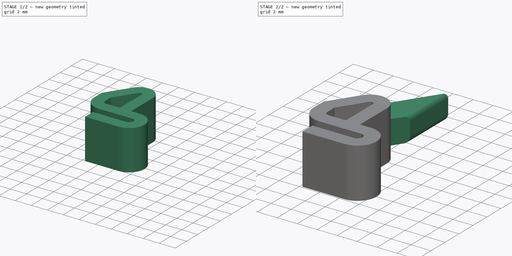
[diagram: build sequence overview — one tinted view per stage of 2, left to right]
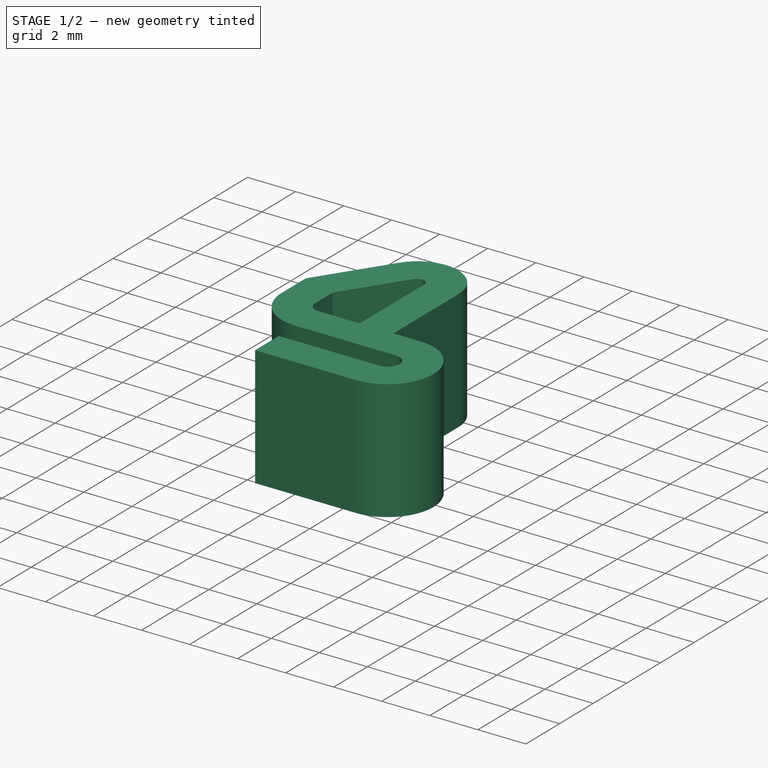
[diagram: stage 1 of 2 — iso view after this stage's code; geometry added in this stage tinted green]
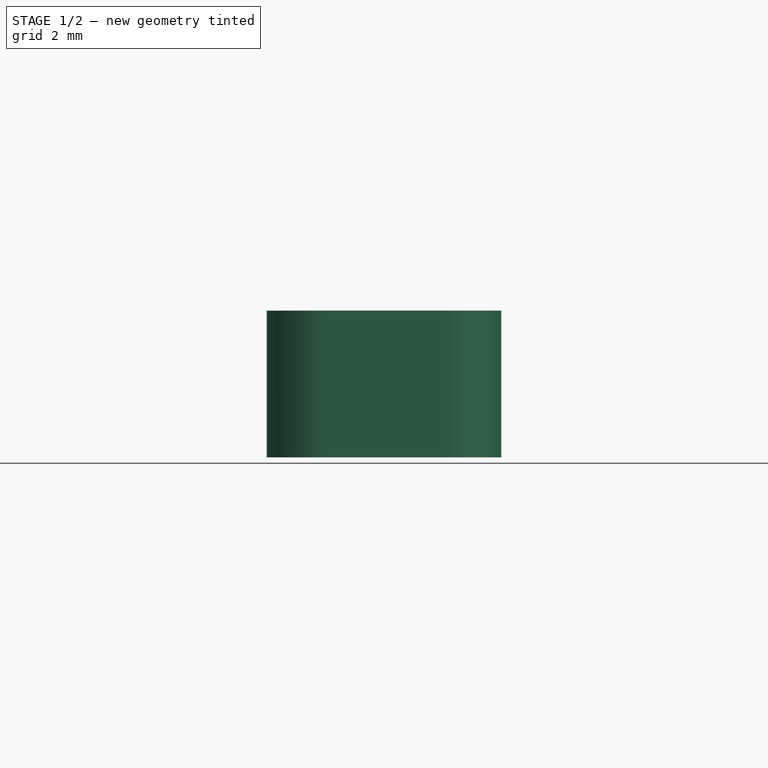
[diagram: stage 1 of 2 — front view after this stage's code; geometry added in this stage tinted green]
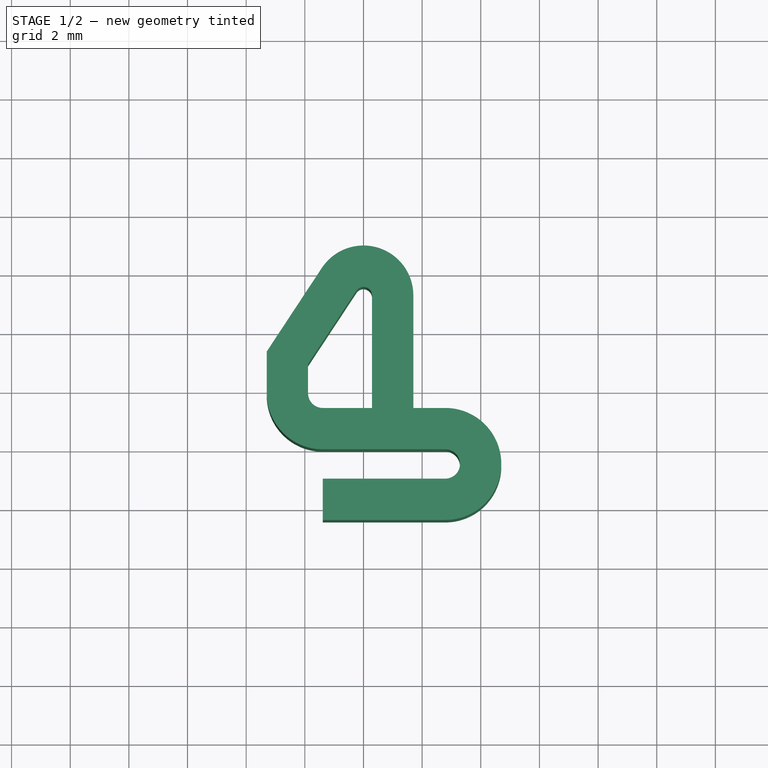
[diagram: stage 1 of 2 — top view after this stage's code; geometry added in this stage tinted green]
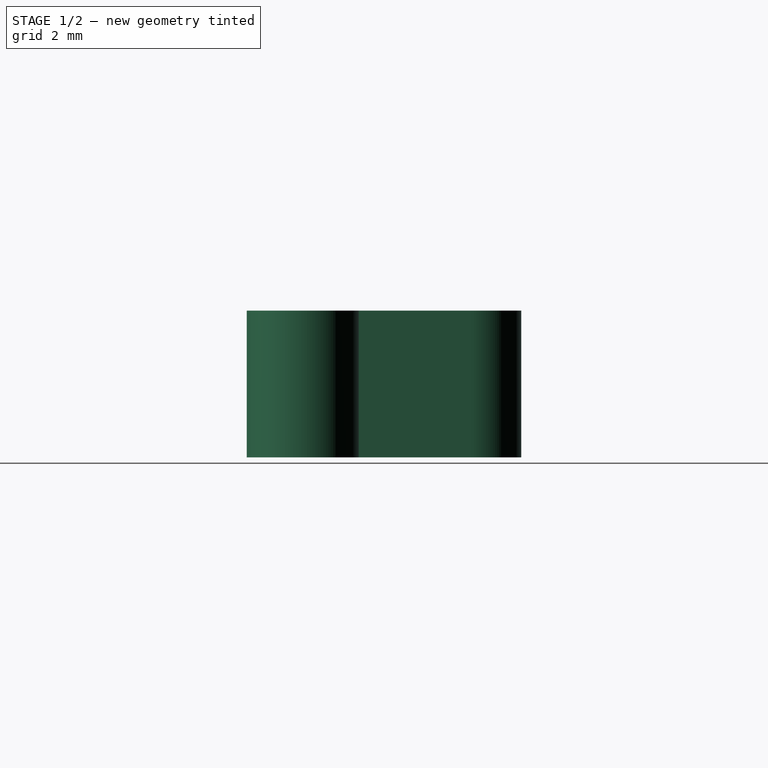
[diagram: stage 1 of 2 — right view after this stage's code; geometry added in this stage tinted green]
FCSTD DOCUMENT  (FreeCAD 0.20R29410 (Git))
Label: DevKitty-Button-Cut
License: All rights reserved
LicenseURL: http://en.wikipedia.org/wiki/All_rights_reserved
objects: Sketcher::SketchObject×2, PartDesign::Pad×2, PartDesign::Body×1
note: 7 computed .brp shape members not serialized (recipe doc carries the construction recipe); baked Part::Feature solids carry a one-line shape summary decoded from their .brp

FEATURE [Sketcher::SketchObject] Sketch
  FullyConstrained = true
  MapMode = 5
  Support = -> [XY_Plane]
  sketch-geometry (25):
    g0: ArcOfCircle CenterX=2.79 CenterY=-0.5 CenterZ=0 NormalX=0 NormalY=0 NormalZ=1 AngleXU=0 Radius=1.91 StartAngle=4.71239 EndAngle=7.85398
    g1: ArcOfCircle CenterX=2.79 CenterY=-0.5 CenterZ=0 NormalX=0 NormalY=0 NormalZ=1 AngleXU=0 Radius=0.5 StartAngle=4.71239 EndAngle=7.85398
    g2: LineSegment StartX=-1.39 StartY=-1 StartZ=0 EndX=2.79 EndY=-1 EndZ=0
    g3: LineSegment StartX=-1.39 StartY=-2.41 StartZ=0 EndX=2.79 EndY=-2.41 EndZ=0
    g4: LineSegment StartX=2.79 StartY=0 StartZ=0 EndX=-1.39 EndY=0 EndZ=0
    g5: ArcOfCircle CenterX=-1.39 CenterY=1.91 CenterZ=0 NormalX=0 NormalY=0 NormalZ=1 AngleXU=0 Radius=1.91 StartAngle=3.14159 EndAngle=4.71239
    g6: LineSegment StartX=-3.3 StartY=1.91 StartZ=0 EndX=-3.3 EndY=3.33295 EndZ=0
    g7: LineSegment StartX=-1.89 StartY=2.91 StartZ=0 EndX=-1.89 EndY=1.91 EndZ=0
    g8: ArcOfCircle CenterX=-1.39 CenterY=1.91 CenterZ=0 NormalX=0 NormalY=0 NormalZ=1 AngleXU=0 Radius=0.5 StartAngle=3.14159 EndAngle=4.71239
    g9: LineSegment StartX=-1.39 StartY=1.41 StartZ=0 EndX=0.29 EndY=1.41 EndZ=0
    g10: LineSegment StartX=0.29 StartY=1.41 StartZ=0 EndX=0.29 EndY=5.25 EndZ=0
    g11: LineSegment StartX=1.7 StartY=5.25 StartZ=0 EndX=1.7 EndY=1.41 EndZ=0
    g12: LineSegment StartX=-3.3 StartY=3.33295 StartZ=0 EndX=-1.41932 EndY=6.18569 EndZ=0
    g13: LineSegment StartX=-0.24212 StartY=5.40962 StartZ=0 EndX=-1.89 EndY=2.91 EndZ=0
    g14: LineSegment StartX=2.79 StartY=1.41 StartZ=0 EndX=2.79 EndY=0 EndZ=0
    g15: LineSegment StartX=-3.3 StartY=1.91 StartZ=0 EndX=-1.89 EndY=1.91 EndZ=0
    g16: LineSegment StartX=0.29 StartY=1.41 StartZ=0 EndX=1.7 EndY=1.41 EndZ=0
    g17: LineSegment StartX=2.79 StartY=1.41 StartZ=0 EndX=1.7 EndY=1.41 EndZ=0
    g18: ArcOfCircle CenterX=0 CenterY=5.25 CenterZ=0 NormalX=0 NormalY=0 NormalZ=1 AngleXU=0 Radius=1.7 StartAngle=6.49776e-07 EndAngle=2.55874
    g19: ArcOfCircle CenterX=0 CenterY=5.25 CenterZ=0 NormalX=0 NormalY=0 NormalZ=1 AngleXU=0 Radius=0.29 StartAngle=3.80903e-06 EndAngle=2.55874
    g20: LineSegment StartX=-0.24212 StartY=5.40962 StartZ=0 EndX=-1.41932 EndY=6.18569 EndZ=0
    g21: LineSegment StartX=-1.39 StartY=-1 StartZ=0 EndX=-1.39 EndY=-2.41 EndZ=0
    g22: GeomPoint X=4.7 Y=-0.5 Z=0
    g23: LineSegment StartX=-0.24212 StartY=5.40962 StartZ=0 EndX=0 EndY=5.25 EndZ=0
    g24: GeomPoint X=0 Y=6.95 Z=0
  constraints (71):
    c: Horizontal(g2)
    c: Horizontal(g3)
    c: Coincident(g2,g21)
    c: Coincident(g3,g21)
    c: Coincident(g0,g3)
    c: Coincident(g1,g2)
    c: Coincident(g1,g4)
    c: Coincident(g1,g14)
    c: Coincident(g0,g14)
    c: Coincident(g0,g17)
    c: Horizontal(g0,g22)
    c: Vertical(g1,g0)
    c: Vertical(g1,g0)
    c: Coincident(g0,g1)
    c: Horizontal(g4)
    c: Vertical(g21)
    c: Coincident(g7,g13)
    c: Coincident(g6,g12)
    c: Horizontal(g5,g7)
    c: Vertical(g5,g8)
    c: Equal(g16,g15)
    c: Equal(g15,g20)
    c: Equal(g20,g14)
    c: Coincident(g11,g16)
    c: Coincident(g11,g17)
    c: Coincident(g9,g10)
    c: Coincident(g9,g16)
    c: Coincident(g8,g9)
    c: Coincident(g7,g8)
    c: Coincident(g7,g15)
    c: Coincident(g5,g8)
    c: Horizontal(g9)
    c: Coincident(g4,g5)
    c: Horizontal(g16)
    c: Horizontal(g15)
    c: Vertical(g7)
    c: Vertical(g6)
    c: Vertical(g10)
    c: Vertical(g11)
    c: Coincident(g5,g6)
    c: Coincident(g5,g15)
    c: Coincident(g11,g18)
    c: Coincident(g10,g19)
    c: Coincident(g13,g19)
    c: Coincident(g13,g20)
    c: Coincident(g12,g18)
    c: Coincident(g12,g20)
    c: Coincident(g18,g19)
    c: Horizontal(g11,g10)
    c: Vertical(g14)
    c: PointOnObject(g18,g-2)
    c: Parallel(g23,g20)
    c: Vertical(g4,g8)
    c: PointOnObject(g24,g18)
    c: PointOnObject(g24,g-2)
    c: DistanceX(g5,g22) = 8
    c: PointOnObject(g22,g0)
    c: Vertical(g0,g1)
    c: DistanceX(g6,g11) = 5
    c: Coincident(g13,g23)
    c: Coincident(g18,g23)
    c: DistanceY(g11,g24) = 5.54
    c: Vertical(g2,g4)
    c: Parallel(g12,g13)
    c: DistanceY(g7,g7) = 1
    c: Angle(g13,g23) = 1.5708
    c: DistanceX(g16,g16) = 1.41
    c: PointOnObject(g-1,g4)
    c: Radius(g19) = 0.29
    c: Radius(g8) = 0.5
    c: DistanceY(g2,g1) = 1
FEATURE [PartDesign::Pad] Pad
  Direction = (0,0,1)
  Length = 5
  Length2 = 10
  Profile = -> Sketch
  ReferenceAxis = -> Sketch [N_Axis]
  Type = 0
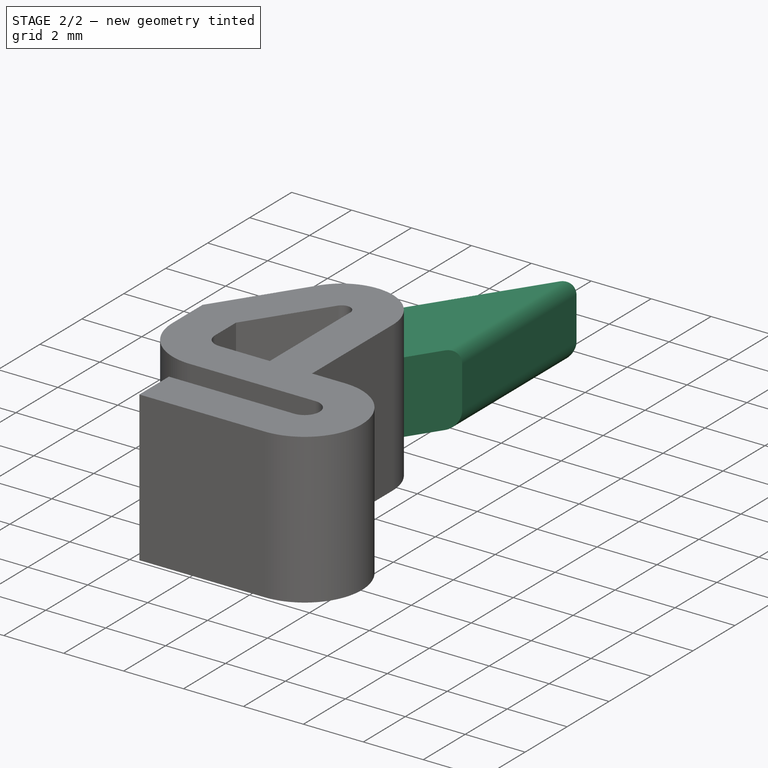
[diagram: stage 2 of 2 — iso view after this stage's code; geometry added in this stage tinted green]
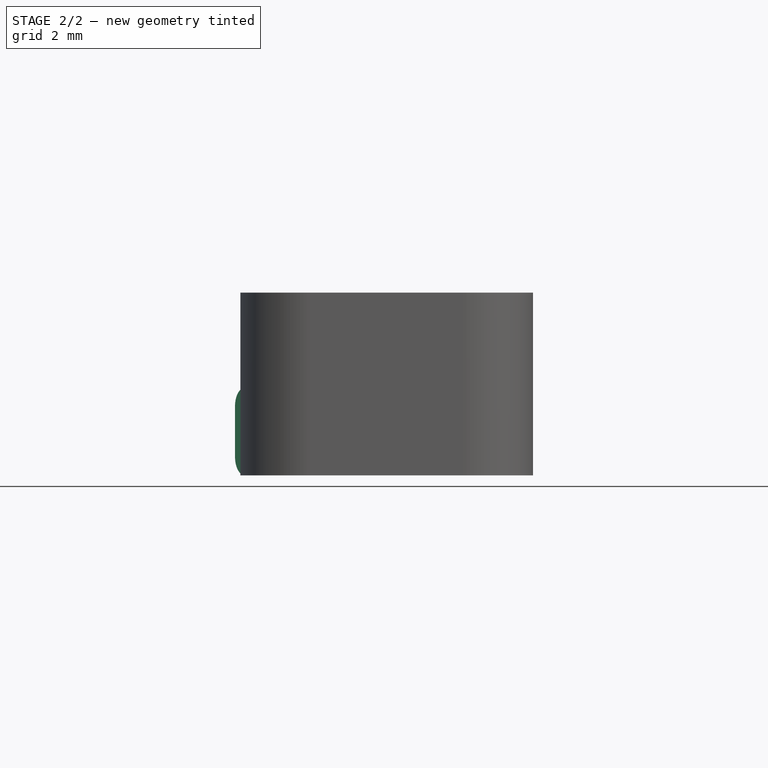
[diagram: stage 2 of 2 — front view after this stage's code; geometry added in this stage tinted green]
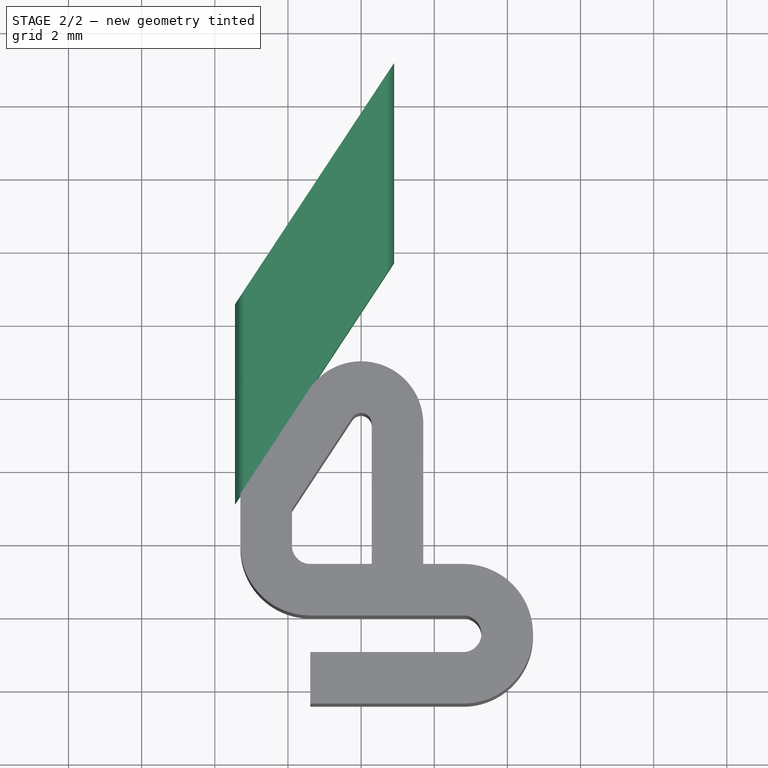
[diagram: stage 2 of 2 — top view after this stage's code; geometry added in this stage tinted green]
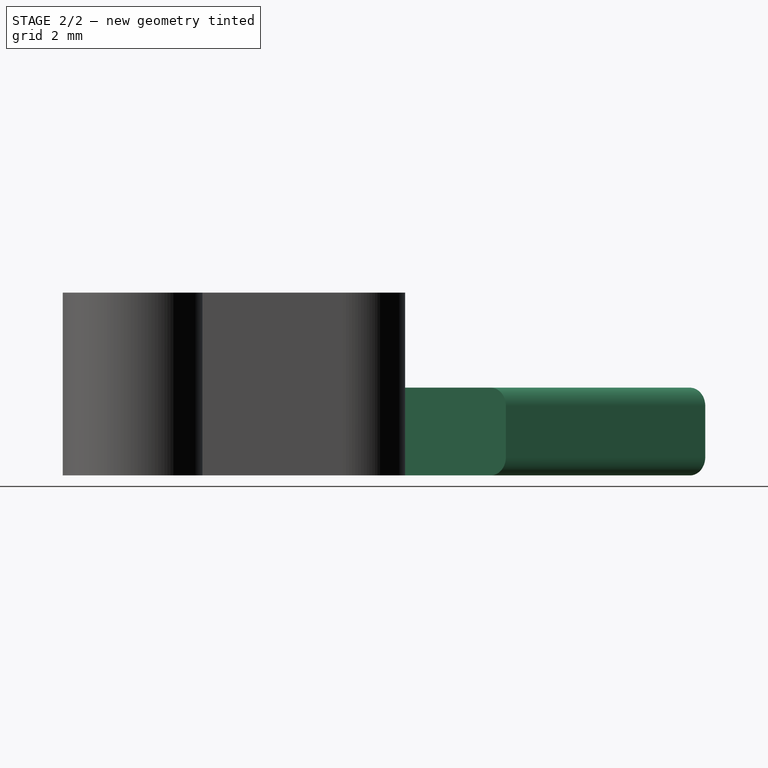
[diagram: stage 2 of 2 — right view after this stage's code; geometry added in this stage tinted green]
FEATURE [Sketcher::SketchObject] Sketch002
  FullyConstrained = true
  MapMode = 5
  Placement = pos=(-3.83187,2.52617,0) rot=(-0.355853,0.660821,0.660821;3.82535rad)
  Support = -> [Pad]
  sketch-geometry (12):
    g0: LineSegment StartX=-8.1 StartY=2.4 StartZ=0 EndX=-1.2 EndY=2.4 EndZ=0
    g1: LineSegment StartX=-0.7 StartY=1.9 StartZ=0 EndX=-0.7 EndY=0.5 EndZ=0
    g2: LineSegment StartX=-1.2 StartY=0 StartZ=0 EndX=-8.1 EndY=0 EndZ=0
    g3: LineSegment StartX=-8.6 StartY=0.5 StartZ=0 EndX=-8.6 EndY=1.9 EndZ=0
    g4: ArcOfCircle CenterX=-8.1 CenterY=1.9 CenterZ=0 NormalX=0 NormalY=0 NormalZ=1 AngleXU=0 Radius=0.5 StartAngle=1.5708 EndAngle=3.14159
    g5: GeomPoint X=-8.6 Y=2.4 Z=0
    g6: ArcOfCircle CenterX=-8.1 CenterY=0.5 CenterZ=0 NormalX=0 NormalY=0 NormalZ=1 AngleXU=0 Radius=0.5 StartAngle=3.14159 EndAngle=4.71239
    g7: GeomPoint X=-8.6 Y=0 Z=0
    g8: ArcOfCircle CenterX=-1.2 CenterY=0.5 CenterZ=0 NormalX=0 NormalY=0 NormalZ=1 AngleXU=0 Radius=0.5 StartAngle=4.71239 EndAngle=6.28319
    g9: GeomPoint X=-0.7 Y=0 Z=0
    g10: ArcOfCircle CenterX=-1.2 CenterY=1.9 CenterZ=0 NormalX=0 NormalY=0 NormalZ=1 AngleXU=0 Radius=0.5 StartAngle=0 EndAngle=1.5708
    g11: GeomPoint X=-0.7 Y=2.4 Z=0
  constraints (28):
    c: Horizontal(g0)
    c: Horizontal(g2)
    c: Vertical(g1)
    c: Vertical(g3)
    c: PointOnObject(g5,g3)
    c: PointOnObject(g5,g0)
    c: Tangent(g3,g4) = 1.5708
    c: Tangent(g0,g4) = 1.5708
    c: PointOnObject(g7,g3)
    c: PointOnObject(g7,g2)
    c: Tangent(g3,g6) = 1.5708
    c: Tangent(g2,g6) = 1.5708
    c: PointOnObject(g9,g1)
    c: PointOnObject(g9,g2)
    c: Tangent(g1,g8) = 1.5708
    c: Tangent(g2,g8) = 1.5708
    c: PointOnObject(g11,g0)
    c: PointOnObject(g11,g1)
    c: Tangent(g0,g10) = 1.5708
    c: Tangent(g1,g10) = 1.5708
    c: Equal(g10,g8)
    c: Equal(g8,g6)
    c: Equal(g6,g4)
    c: Radius(g10) = 0.5
    c: DistanceX(g3,g1) = 7.9
    c: DistanceY(g2,g0) = 2.4
    c: Horizontal(g-1,g2)
    c: DistanceX(g2,g-1) = 1.2
FEATURE [PartDesign::Pad] Pad001
  BaseFeature = -> Pad
  Direction = (0,0.55,0)
  Length = 3
  Length2 = 10
  Profile = -> Sketch002
  ReferenceAxis = -> Sketch002 [N_Axis]
  Type = 0
  UseCustomVector = true
FEATURE [PartDesign::Body] Body
  Group = -> [Sketch,Pad,Sketch002,Pad001]
  Origin = -> Origin
  Tip = -> Pad001
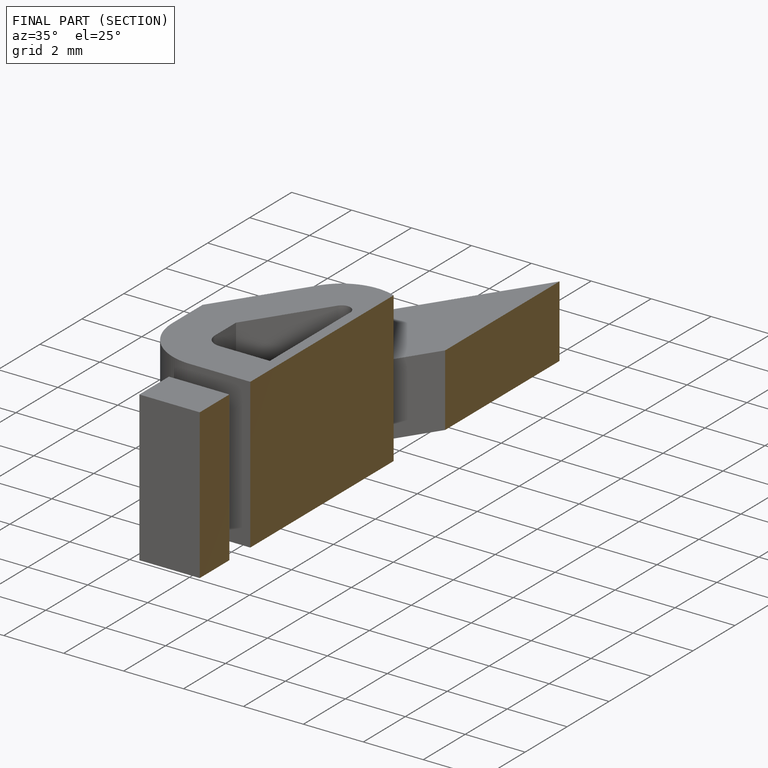
[diagram: finished part — half-section view (interior)]
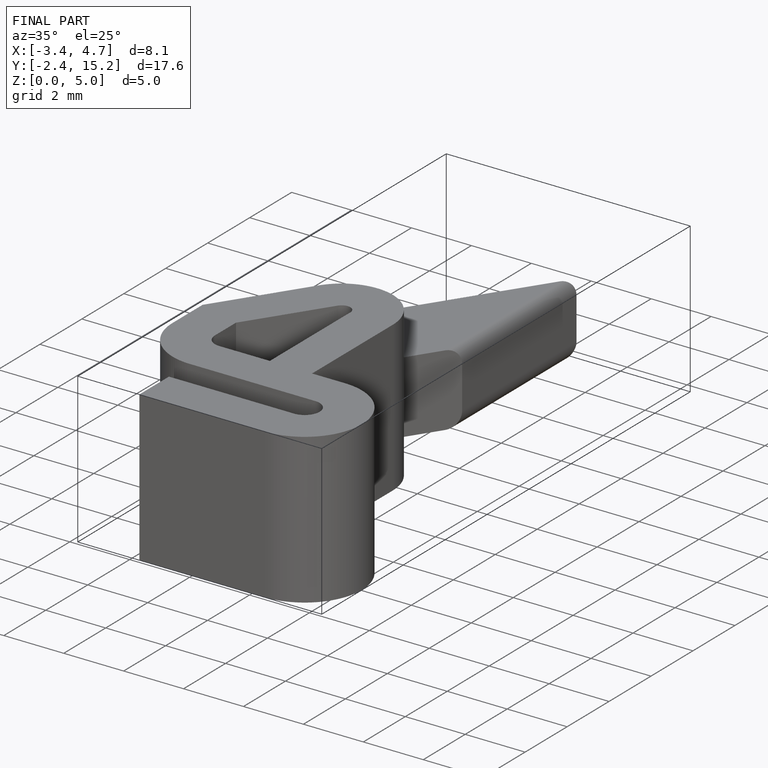
[diagram: finished part — iso view with bounding-box wireframe]
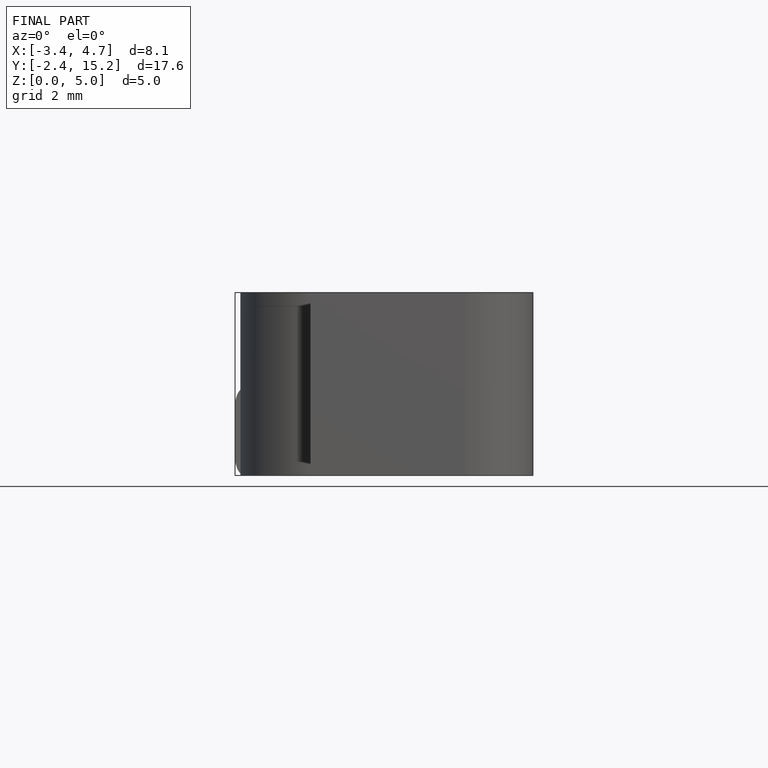
[diagram: finished part — front view with bounding-box wireframe]
